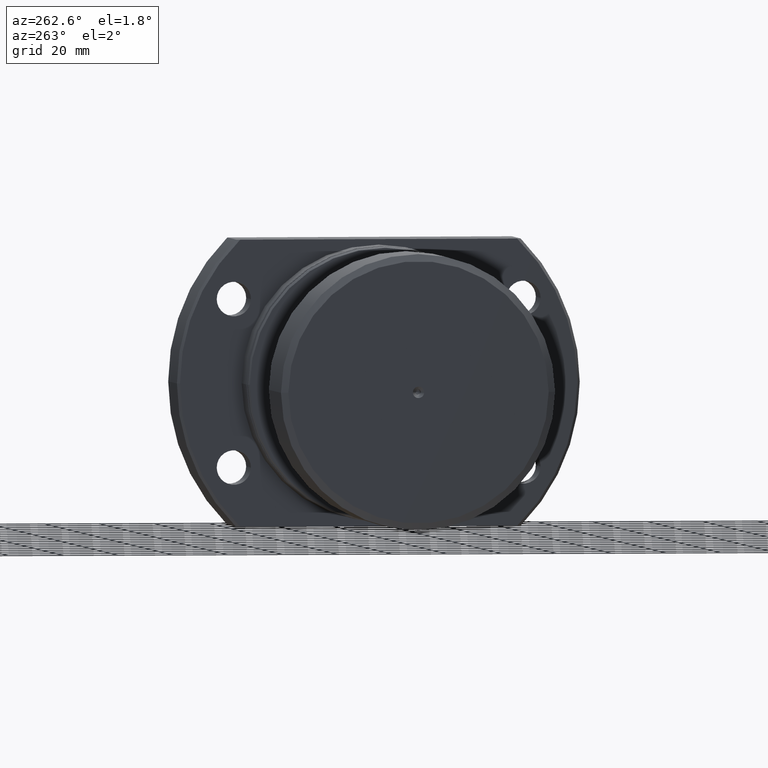
[diagram: clean part render]
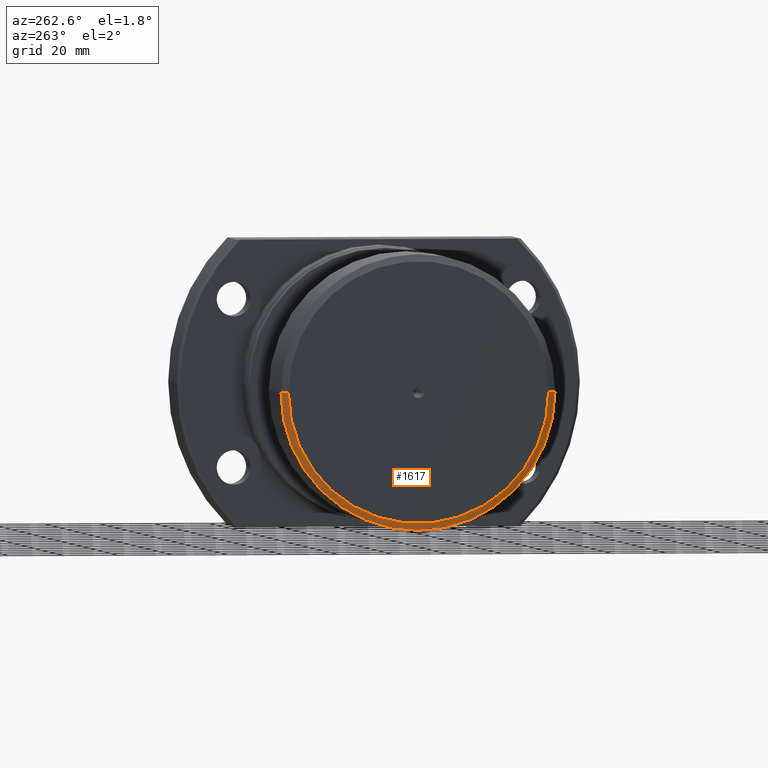
[diagram: same view with one face highlighted and labeled with its STEP entity id]
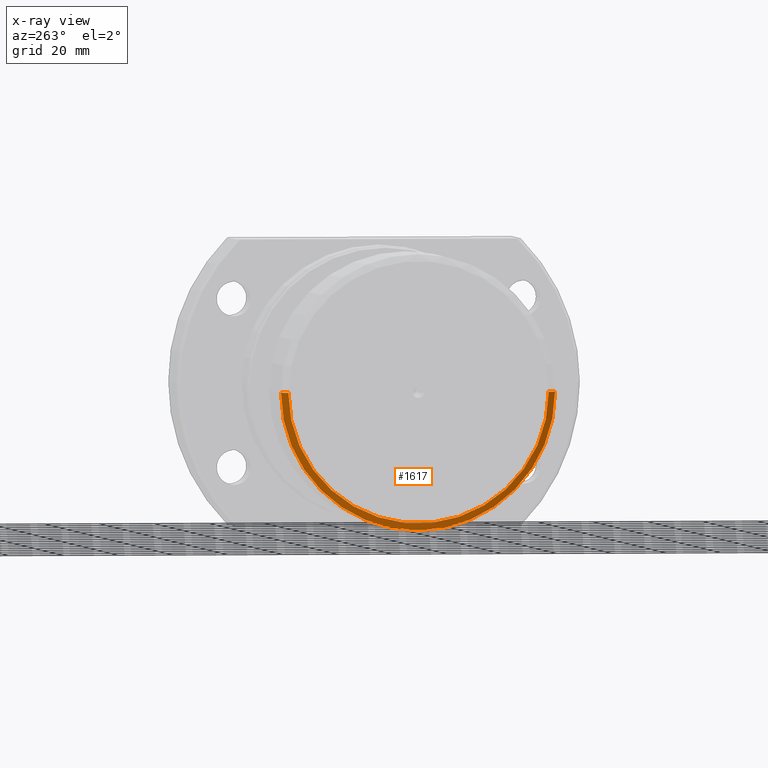
[diagram: x-ray of the same camera — body ghosted, the highlighted face saturated]
A machine part, auxiliary view. The second image highlights one B-rep face of the part: STEP entity #1617.
The next image is the same camera in x-ray: the body ghosted, the highlighted face saturated — about 0% of this face is hidden behind the body in this view.
In plain terms, the highlighted conical surface has half-angle 59.036 deg.
Its self-contained STEP definition (entity closure, byte-faithful):
#27 = AXIS2_PLACEMENT_3D ( 'NONE', #3612, #176, #801 ) ;
#155 = CIRCLE ( 'NONE', #3192, 50.00000000000000000 ) ;
#175 = DIRECTION ( 'NONE',  ( 0.5144957554275262357, 0.8574929257125444293, 0.000000000000000000 ) ) ;
#176 = DIRECTION ( 'NONE',  ( 1.000000000000000000, 1.069542322069065801E-17, 0.000000000000000000 ) ) ;
#215 = AXIS2_PLACEMENT_3D ( 'NONE', #3102, #1114, #1182 ) ;
#245 = EDGE_CURVE ( 'NONE', #2417, #525, #2793, .T. ) ;
#525 = VERTEX_POINT ( 'NONE', #1204 ) ;
#548 = ORIENTED_EDGE ( 'NONE', *, *, #2718, .F. ) ;
#801 = DIRECTION ( 'NONE',  ( -1.069542322069065647E-17, 1.000000000000000000, 0.000000000000000000 ) ) ;
#952 = CARTESIAN_POINT ( 'NONE',  ( 5.817072295949928215E-15, -47.50000000000000000, 5.817072295949928215E-15 ) ) ;
#1086 = FACE_OUTER_BOUND ( 'NONE', #1988, .T. ) ;
#1089 = DIRECTION ( 'NONE',  ( -1.000000000000000000, -1.069542322069065801E-17, -0.000000000000000000 ) ) ;
#1114 = DIRECTION ( 'NONE',  ( -1.000000000000000000, -1.069542322069065801E-17, -0.000000000000000000 ) ) ;
#1138 = ORIENTED_EDGE ( 'NONE', *, *, #245, .T. ) ;
#1182 = DIRECTION ( 'NONE',  ( 1.069542322069065647E-17, -1.000000000000000000, 0.000000000000000000 ) ) ;
#1204 = CARTESIAN_POINT ( 'NONE',  ( 1.500000000000005551, 50.00000000000000000, 0.000000000000000000 ) ) ;
#1239 = CARTESIAN_POINT ( 'NONE',  ( 4.801007089984315887E-15, 47.50000000000000000, 0.000000000000000000 ) ) ;
#1306 = DIRECTION ( 'NONE',  ( 0.5144957554275262357, -0.8574929257125444293, 1.050125966765366654E-16 ) ) ;
#1593 = CARTESIAN_POINT ( 'NONE',  ( 4.801007089984315887E-15, 47.50000000000000000, 0.000000000000000000 ) ) ;
#1599 = LINE ( 'NONE', #952, #2073 ) ;
#1617 = ADVANCED_FACE ( 'NONE', ( #1086 ), #2644, .T. ) ;
#1837 = ORIENTED_EDGE ( 'NONE', *, *, #2922, .F. ) ;
#1988 = EDGE_LOOP ( 'NONE', ( #1837, #548, #1138, #3576 ) ) ;
#2073 = VECTOR ( 'NONE', #1306, 999.9999999999998863 ) ;
#2298 = CIRCLE ( 'NONE', #215, 47.50000000000000000 ) ;
#2417 = VERTEX_POINT ( 'NONE', #1239 ) ;
#2487 = VERTEX_POINT ( 'NONE', #2965 ) ;
#2521 = DIRECTION ( 'NONE',  ( 8.673617379884035472E-18, -1.000000000000000000, 0.000000000000000000 ) ) ;
#2528 = VERTEX_POINT ( 'NONE', #3043 ) ;
#2644 = CONICAL_SURFACE ( 'NONE', #27, 47.50000000000000000, 1.030376826524312728 ) ;
#2718 = EDGE_CURVE ( 'NONE', #2417, #2528, #2298, .T. ) ;
#2793 = LINE ( 'NONE', #1593, #3229 ) ;
#2922 = EDGE_CURVE ( 'NONE', #2528, #2487, #1599, .T. ) ;
#2965 = CARTESIAN_POINT ( 'NONE',  ( 1.500000000000006217, -50.00000000000000000, 6.123233995736766085E-15 ) ) ;
#3002 = EDGE_CURVE ( 'NONE', #525, #2487, #155, .T. ) ;
#3043 = CARTESIAN_POINT ( 'NONE',  ( 5.817072295949928215E-15, -47.50000000000000000, 5.970153145843347150E-15 ) ) ;
#3102 = CARTESIAN_POINT ( 'NONE',  ( 5.309039692967122051E-15, 5.678242641172895614E-32, 0.000000000000000000 ) ) ;
#3192 = AXIS2_PLACEMENT_3D ( 'NONE', #3614, #1089, #2521 ) ;
#3229 = VECTOR ( 'NONE', #175, 999.9999999999998863 ) ;
#3576 = ORIENTED_EDGE ( 'NONE', *, *, #3002, .T. ) ;
#3612 = CARTESIAN_POINT ( 'NONE',  ( 5.309039692967122051E-15, 5.678242641172895614E-32, 0.000000000000000000 ) ) ;
#3614 = CARTESIAN_POINT ( 'NONE',  ( 1.500000000000005995, 1.604313483103604941E-17, 0.000000000000000000 ) ) ;